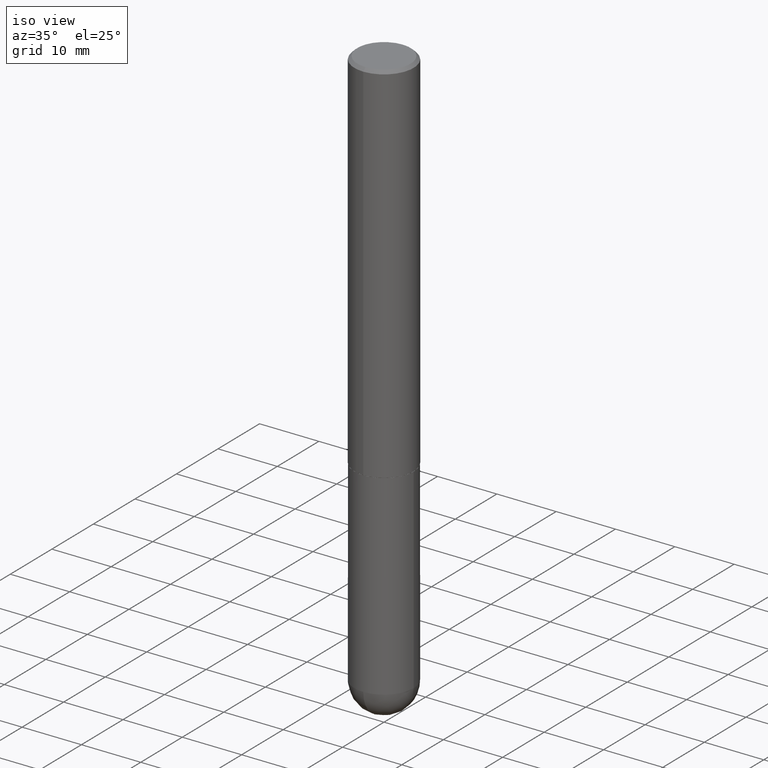
[diagram: clean part render]
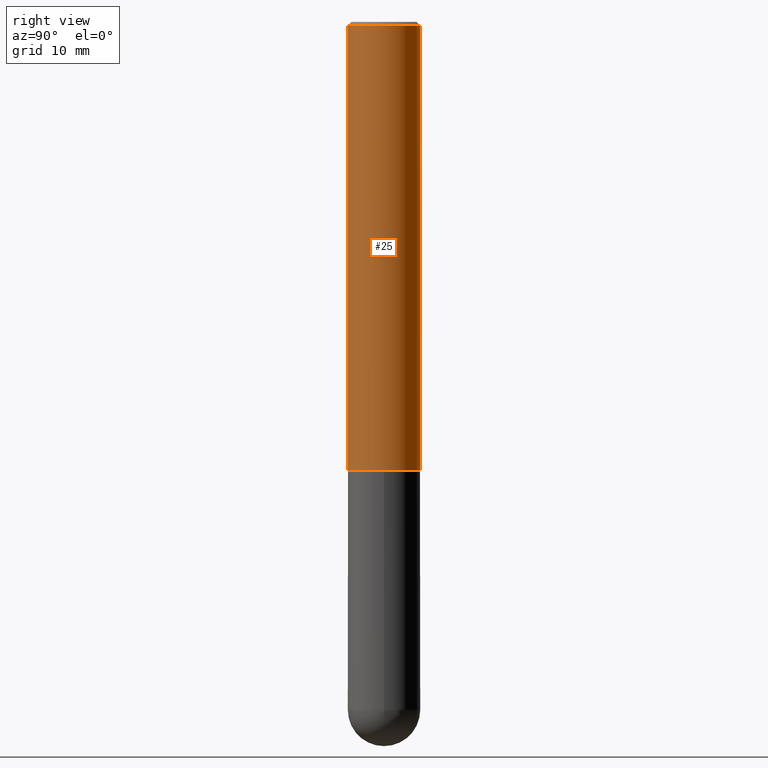
[diagram: tour spotlight — one face highlighted and labeled with its STEP entity id]
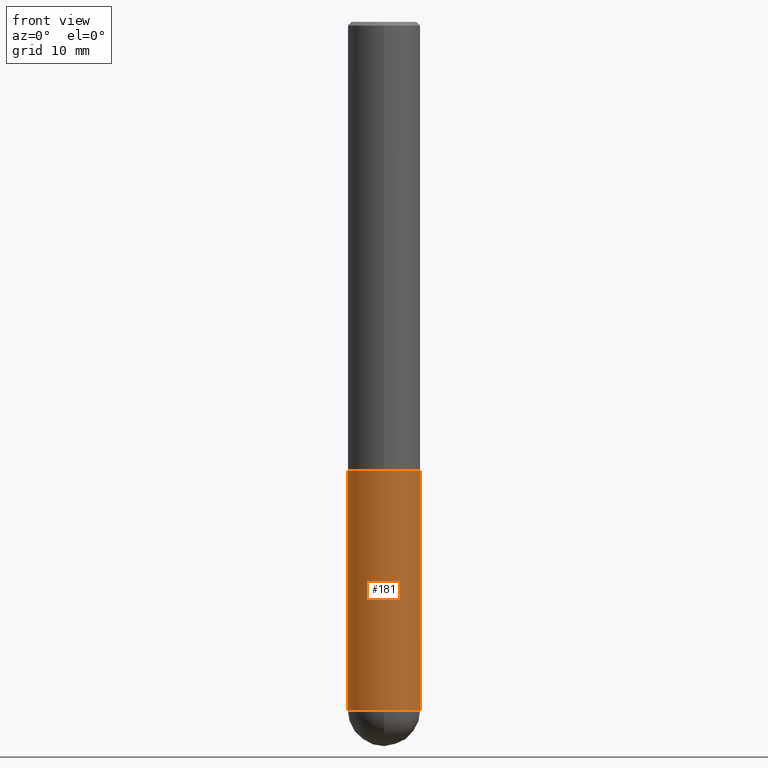
[diagram: tour spotlight — one face highlighted and labeled with its STEP entity id]
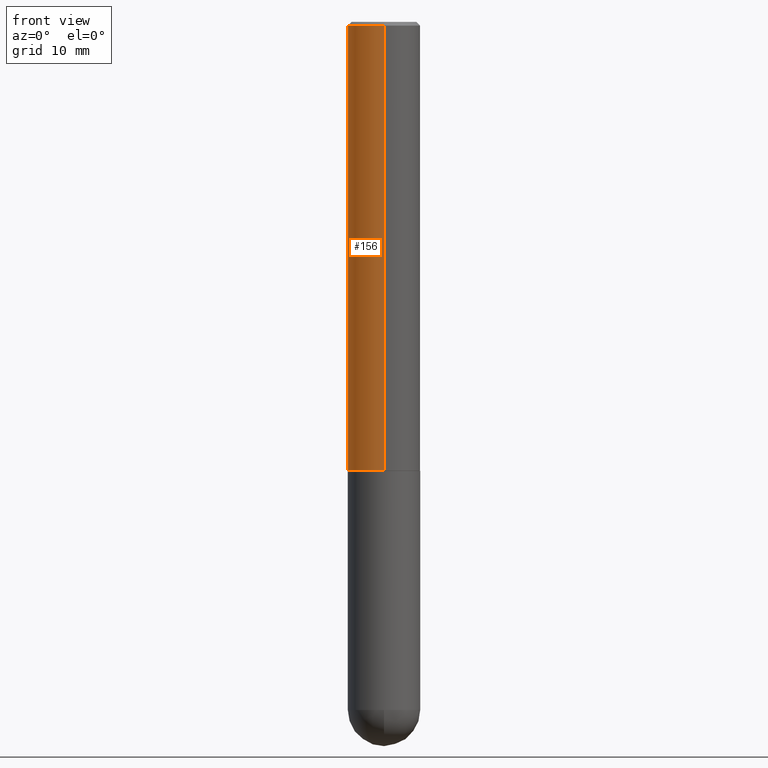
[diagram: tour spotlight — one face highlighted and labeled with its STEP entity id]
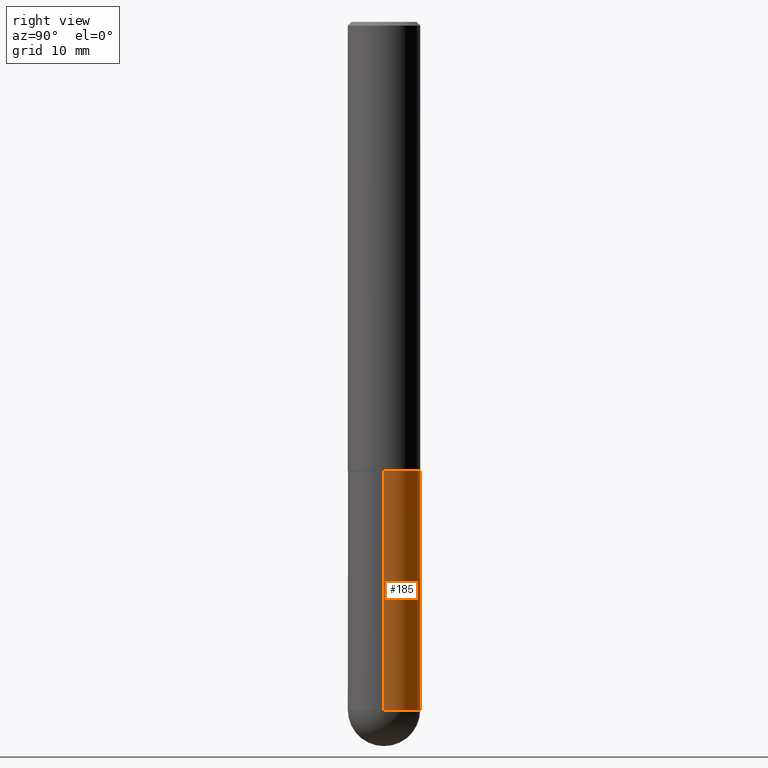
[diagram: tour spotlight — one face highlighted and labeled with its STEP entity id]
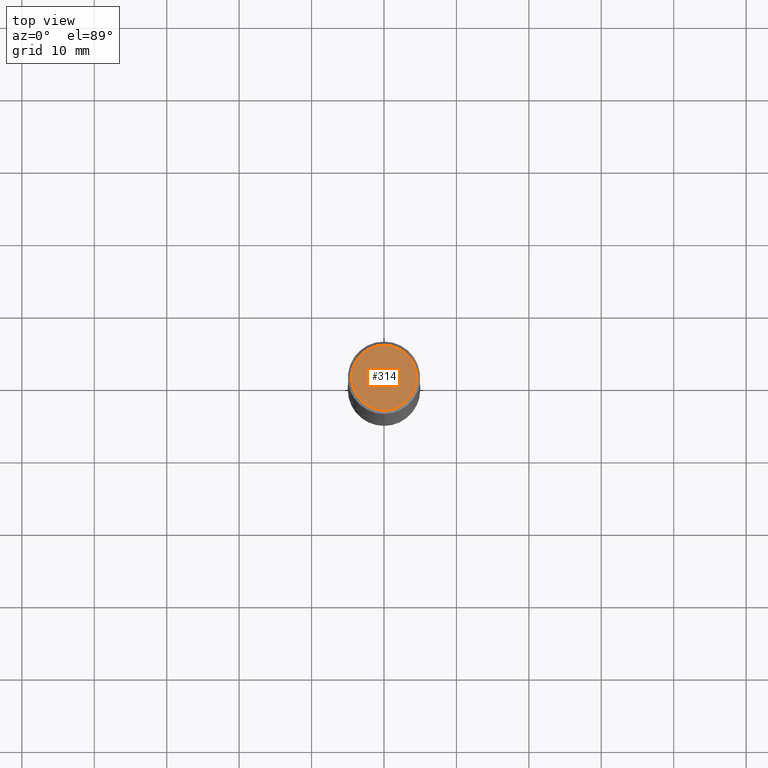
[diagram: tour spotlight — one face highlighted and labeled with its STEP entity id]
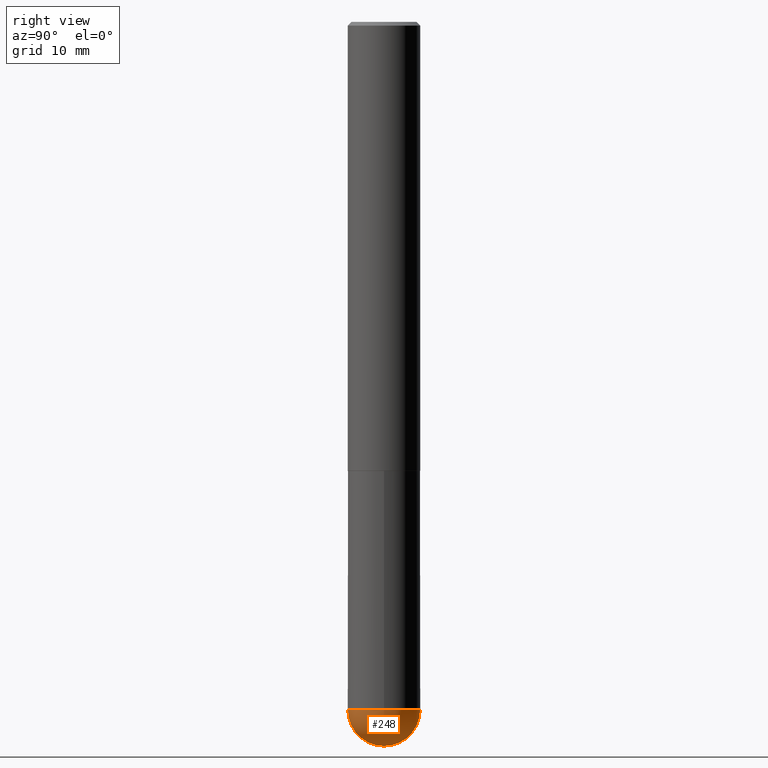
[diagram: tour spotlight — one face highlighted and labeled with its STEP entity id]
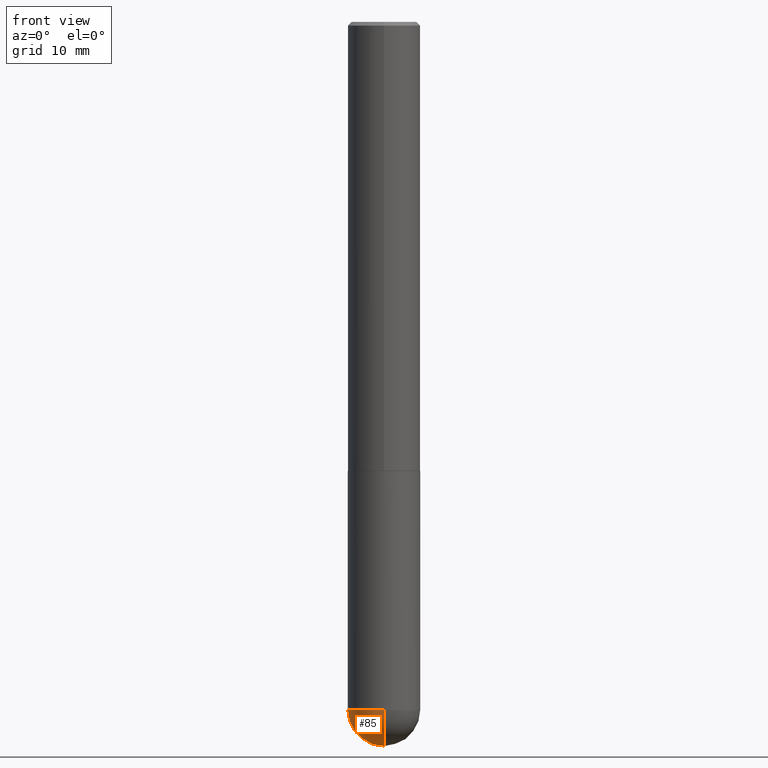
[diagram: tour spotlight — one face highlighted and labeled with its STEP entity id]
A machine part: a face-by-face anatomy tour. The part has 13 B-rep faces; the first image is the clean iso view, then the 7 largest visible faces are spotlighted one at a time (largest first), each with its STEP entity span.

Face 1 — right view, entity #25. In plain terms, the highlighted cylindrical surface (edge-blend (fillet) strip) has radius 5 mm, axis along (-0, 0, 1).
Definition (entity closure, byte-faithful):
#4 = DIRECTION ( 'NONE',  ( -2.444480225679141495E-29, 3.492897042394238758E-15, 1.000000000000000000 ) ) ;
#9 = DIRECTION ( 'NONE',  ( -2.444480225679141495E-29, 3.492897042394238758E-15, 1.000000000000000000 ) ) ;
#19 = CARTESIAN_POINT ( 'NONE',  ( 1.398703375343789145E-15, 0.1968499999999918093, -2.439900000000000624 ) ) ;
#20 = CIRCLE ( 'NONE', #195, 0.1968500000000003303 ) ;
#25 = ADVANCED_FACE ( 'NONE', ( #228 ), #363, .T. ) ;
#60 = VERTEX_POINT ( 'NONE', #19 ) ;
#61 = VERTEX_POINT ( 'NONE', #325 ) ;
#81 = DIRECTION ( 'NONE',  ( -2.444480225679141495E-29, 3.492897042394238758E-15, 1.000000000000000000 ) ) ;
#89 = ORIENTED_EDGE ( 'NONE', *, *, #221, .T. ) ;
#90 = CARTESIAN_POINT ( 'NONE',  ( -1.374596203102542594E-15, -0.1968500000000001915, 6.875767827953065398E-16 ) ) ;
#91 = EDGE_LOOP ( 'NONE', ( #178, #89, #95, #141 ) ) ;
#95 = ORIENTED_EDGE ( 'NONE', *, *, #285, .F. ) ;
#108 = VERTEX_POINT ( 'NONE', #200 ) ;
#119 = LINE ( 'NONE', #90, #384 ) ;
#141 = ORIENTED_EDGE ( 'NONE', *, *, #172, .F. ) ;
#155 = DIRECTION ( 'NONE',  ( -2.444480225679141495E-29, 3.492897042394238758E-15, 1.000000000000000000 ) ) ;
#162 = CARTESIAN_POINT ( 'NONE',  ( 5.964287302634537555E-29, -8.522319493737701952E-15, -2.439899999999999736 ) ) ;
#172 = EDGE_CURVE ( 'NONE', #61, #182, #119, .T. ) ;
#178 = ORIENTED_EDGE ( 'NONE', *, *, #270, .T. ) ;
#182 = VERTEX_POINT ( 'NONE', #371 ) ;
#183 = DIRECTION ( 'NONE',  ( -6.982962677686265133E-15, -1.000000000000000000, 3.491137977679279029E-15 ) ) ;
#195 = AXIS2_PLACEMENT_3D ( 'NONE', #162, #4, #392 ) ;
#200 = CARTESIAN_POINT ( 'NONE',  ( 1.374596203102542200E-15, 0.1968499999999999694, -0.02000000000000072900 ) ) ;
#206 = CARTESIAN_POINT ( 'NONE',  ( 1.398703375343758182E-15, 0.1968500000000001915, -6.875767827953065398E-16 ) ) ;
#221 = EDGE_CURVE ( 'NONE', #60, #108, #271, .T. ) ;
#228 = FACE_OUTER_BOUND ( 'NONE', #91, .T. ) ;
#233 = AXIS2_PLACEMENT_3D ( 'NONE', #295, #9, #292 ) ;
#249 = CIRCLE ( 'NONE', #393, 0.1968500000000000527 ) ;
#270 = EDGE_CURVE ( 'NONE', #61, #60, #20, .T. ) ;
#271 = LINE ( 'NONE', #206, #379 ) ;
#285 = EDGE_CURVE ( 'NONE', #182, #108, #249, .T. ) ;
#292 = DIRECTION ( 'NONE',  ( -6.982962677686265133E-15, -1.000000000000000000, 3.492897042394238758E-15 ) ) ;
#295 = CARTESIAN_POINT ( 'NONE',  ( 0.000000000000000000, 0.000000000000000000, 0.000000000000000000 ) ) ;
#309 = DIRECTION ( 'NONE',  ( -2.444480225679141495E-29, 3.492897042394238758E-15, 1.000000000000000000 ) ) ;
#322 = CARTESIAN_POINT ( 'NONE',  ( 4.888960451358293429E-31, -6.985794084788491174E-17, -0.02000000000000004205 ) ) ;
#325 = CARTESIAN_POINT ( 'NONE',  ( -1.374596203102484021E-15, -0.1968500000000088512, -2.439899999999998847 ) ) ;
#363 = CYLINDRICAL_SURFACE ( 'NONE', #233, 0.1968500000000001915 ) ;
#371 = CARTESIAN_POINT ( 'NONE',  ( -1.350489030861325626E-15, -0.1968500000000001082, -0.01999999999999935510 ) ) ;
#379 = VECTOR ( 'NONE', #81, 39.37007874015748143 ) ;
#384 = VECTOR ( 'NONE', #309, 39.37007874015748143 ) ;
#392 = DIRECTION ( 'NONE',  ( -6.982962677686265133E-15, -1.000000000000000000, 4.163344669033668535E-15 ) ) ;
#393 = AXIS2_PLACEMENT_3D ( 'NONE', #322, #155, #183 ) ;

Face 2 — front view, entity #181. In plain terms, the highlighted cylindrical surface (edge-blend (fillet) strip) has radius 5 mm, axis along (-0, 0, 1).
Definition (entity closure, byte-faithful):
#5 = AXIS2_PLACEMENT_3D ( 'NONE', #78, #106, #140 ) ;
#15 = EDGE_CURVE ( 'NONE', #23, #303, #208, .T. ) ;
#23 = VERTEX_POINT ( 'NONE', #135 ) ;
#24 = CARTESIAN_POINT ( 'NONE',  ( 9.146420155453340551E-29, -1.305866392947419340E-14, -3.740150000000000752 ) ) ;
#27 = EDGE_LOOP ( 'NONE', ( #398, #376, #260, #276, #296 ) ) ;
#28 = CIRCLE ( 'NONE', #79, 0.1968500000000000250 ) ;
#30 = CARTESIAN_POINT ( 'NONE',  ( 0.000000000000000000, 0.000000000000000000, 0.000000000000000000 ) ) ;
#38 = AXIS2_PLACEMENT_3D ( 'NONE', #24, #235, #176 ) ;
#51 = CARTESIAN_POINT ( 'NONE',  ( 0.1968499999999999694, -1.216510656783075637E-14, -3.740150000000000752 ) ) ;
#66 = CIRCLE ( 'NONE', #38, 0.1968499999999999694 ) ;
#78 = CARTESIAN_POINT ( 'NONE',  ( 9.146420155453340551E-29, -1.305866392947419340E-14, -3.740150000000000752 ) ) ;
#79 = AXIS2_PLACEMENT_3D ( 'NONE', #338, #179, #304 ) ;
#92 = CARTESIAN_POINT ( 'NONE',  ( 0.1968499999999999694, -1.374596203102541411E-15, 9.598753983154298056E-30 ) ) ;
#106 = DIRECTION ( 'NONE',  ( -2.445468806185136597E-29, 3.491481338843145583E-15, 1.000000000000000000 ) ) ;
#114 = CARTESIAN_POINT ( 'NONE',  ( 0.1968500000000000250, -9.896953003084774574E-15, -2.440900000000000070 ) ) ;
#125 = EDGE_CURVE ( 'NONE', #23, #244, #397, .T. ) ;
#135 = CARTESIAN_POINT ( 'NONE',  ( -0.1968499999999999694, -9.391806989384456184E-15, -3.740150000000000752 ) ) ;
#140 = DIRECTION ( 'NONE',  ( 1.000000000000000000, -6.982962677686269866E-15, 0.000000000000000000 ) ) ;
#170 = DIRECTION ( 'NONE',  ( -2.445468806185136877E-29, 3.491481338843145188E-15, 1.000000000000000000 ) ) ;
#176 = DIRECTION ( 'NONE',  ( 1.000000000000000000, -6.982962677686269866E-15, 0.000000000000000000 ) ) ;
#179 = DIRECTION ( 'NONE',  ( -2.445468806185136597E-29, 3.491481338843145583E-15, 1.000000000000000000 ) ) ;
#181 = ADVANCED_FACE ( 'NONE', ( #301 ), #404, .T. ) ;
#207 = VERTEX_POINT ( 'NONE', #114 ) ;
#208 = CIRCLE ( 'NONE', #5, 0.1968499999999999694 ) ;
#212 = EDGE_CURVE ( 'NONE', #244, #207, #28, .T. ) ;
#214 = DIRECTION ( 'NONE',  ( -2.445468806185136877E-29, 3.491481338843145188E-15, 1.000000000000000000 ) ) ;
#215 = AXIS2_PLACEMENT_3D ( 'NONE', #30, #277, #236 ) ;
#216 = EDGE_CURVE ( 'NONE', #303, #264, #66, .T. ) ;
#235 = DIRECTION ( 'NONE',  ( -2.445468806185136597E-29, 3.491481338843145583E-15, 1.000000000000000000 ) ) ;
#236 = DIRECTION ( 'NONE',  ( 1.000000000000000000, -6.982962677686266711E-15, 4.876176775795935793E-29 ) ) ;
#242 = VECTOR ( 'NONE', #214, 39.37007874015748143 ) ;
#244 = VERTEX_POINT ( 'NONE', #334 ) ;
#260 = ORIENTED_EDGE ( 'NONE', *, *, #216, .T. ) ;
#264 = VERTEX_POINT ( 'NONE', #51 ) ;
#276 = ORIENTED_EDGE ( 'NONE', *, *, #364, .T. ) ;
#277 = DIRECTION ( 'NONE',  ( -2.445468806185136597E-29, 3.491481338843145583E-15, 1.000000000000000000 ) ) ;
#296 = ORIENTED_EDGE ( 'NONE', *, *, #212, .F. ) ;
#301 = FACE_OUTER_BOUND ( 'NONE', #27, .T. ) ;
#303 = VERTEX_POINT ( 'NONE', #387 ) ;
#304 = DIRECTION ( 'NONE',  ( 1.000000000000000000, -6.982962677686262766E-15, 0.000000000000000000 ) ) ;
#307 = VECTOR ( 'NONE', #170, 39.37007874015748143 ) ;
#329 = CARTESIAN_POINT ( 'NONE',  ( -0.1968499999999999694, 1.398703375343756999E-15, -9.682923725166782276E-30 ) ) ;
#334 = CARTESIAN_POINT ( 'NONE',  ( -0.1968500000000000250, -9.391806989384456184E-15, -2.440900000000000070 ) ) ;
#338 = CARTESIAN_POINT ( 'NONE',  ( 5.969144809017299038E-29, -8.522356799982232966E-15, -2.440900000000000070 ) ) ;
#362 = LINE ( 'NONE', #92, #242 ) ;
#364 = EDGE_CURVE ( 'NONE', #264, #207, #362, .T. ) ;
#376 = ORIENTED_EDGE ( 'NONE', *, *, #15, .T. ) ;
#387 = CARTESIAN_POINT ( 'NONE',  ( -1.398703375343667858E-15, -0.1968500000000133754, -3.740150000000000308 ) ) ;
#397 = LINE ( 'NONE', #329, #307 ) ;
#398 = ORIENTED_EDGE ( 'NONE', *, *, #125, .F. ) ;
#404 = CYLINDRICAL_SURFACE ( 'NONE', #215, 0.1968499999999999694 ) ;

Face 3 — front view, entity #156. In plain terms, the highlighted cylindrical surface (edge-blend (fillet) strip) has radius 5 mm, axis along (-0, 0, 1).
Definition (entity closure, byte-faithful):
#11 = EDGE_CURVE ( 'NONE', #60, #61, #139, .T. ) ;
#13 = CARTESIAN_POINT ( 'NONE',  ( 0.000000000000000000, 0.000000000000000000, 0.000000000000000000 ) ) ;
#19 = CARTESIAN_POINT ( 'NONE',  ( 1.398703375343789145E-15, 0.1968499999999918093, -2.439900000000000624 ) ) ;
#22 = DIRECTION ( 'NONE',  ( -6.982962677686265133E-15, -1.000000000000000000, 3.491137977679279029E-15 ) ) ;
#40 = DIRECTION ( 'NONE',  ( -2.444480225679141495E-29, 3.492897042394238758E-15, 1.000000000000000000 ) ) ;
#42 = CYLINDRICAL_SURFACE ( 'NONE', #147, 0.1968500000000001915 ) ;
#50 = CARTESIAN_POINT ( 'NONE',  ( 4.888960451358293429E-31, -6.985794084788491174E-17, -0.02000000000000004205 ) ) ;
#55 = AXIS2_PLACEMENT_3D ( 'NONE', #50, #109, #22 ) ;
#60 = VERTEX_POINT ( 'NONE', #19 ) ;
#61 = VERTEX_POINT ( 'NONE', #325 ) ;
#81 = DIRECTION ( 'NONE',  ( -2.444480225679141495E-29, 3.492897042394238758E-15, 1.000000000000000000 ) ) ;
#90 = CARTESIAN_POINT ( 'NONE',  ( -1.374596203102542594E-15, -0.1968500000000001915, 6.875767827953065398E-16 ) ) ;
#108 = VERTEX_POINT ( 'NONE', #200 ) ;
#109 = DIRECTION ( 'NONE',  ( -2.444480225679141495E-29, 3.492897042394238758E-15, 1.000000000000000000 ) ) ;
#119 = LINE ( 'NONE', #90, #384 ) ;
#138 = DIRECTION ( 'NONE',  ( -6.982962677686265133E-15, -1.000000000000000000, 3.492897042394238758E-15 ) ) ;
#139 = CIRCLE ( 'NONE', #343, 0.1968500000000003303 ) ;
#147 = AXIS2_PLACEMENT_3D ( 'NONE', #13, #163, #138 ) ;
#156 = ADVANCED_FACE ( 'NONE', ( #223 ), #42, .T. ) ;
#163 = DIRECTION ( 'NONE',  ( -2.444480225679141495E-29, 3.492897042394238758E-15, 1.000000000000000000 ) ) ;
#165 = EDGE_CURVE ( 'NONE', #108, #182, #252, .T. ) ;
#172 = EDGE_CURVE ( 'NONE', #61, #182, #119, .T. ) ;
#173 = CARTESIAN_POINT ( 'NONE',  ( 5.964287302634537555E-29, -8.522319493737701952E-15, -2.439899999999999736 ) ) ;
#180 = ORIENTED_EDGE ( 'NONE', *, *, #172, .T. ) ;
#182 = VERTEX_POINT ( 'NONE', #371 ) ;
#188 = EDGE_LOOP ( 'NONE', ( #411, #366, #180, #218 ) ) ;
#200 = CARTESIAN_POINT ( 'NONE',  ( 1.374596203102542200E-15, 0.1968499999999999694, -0.02000000000000072900 ) ) ;
#206 = CARTESIAN_POINT ( 'NONE',  ( 1.398703375343758182E-15, 0.1968500000000001915, -6.875767827953065398E-16 ) ) ;
#218 = ORIENTED_EDGE ( 'NONE', *, *, #165, .F. ) ;
#221 = EDGE_CURVE ( 'NONE', #60, #108, #271, .T. ) ;
#223 = FACE_OUTER_BOUND ( 'NONE', #188, .T. ) ;
#252 = CIRCLE ( 'NONE', #55, 0.1968500000000000527 ) ;
#271 = LINE ( 'NONE', #206, #379 ) ;
#309 = DIRECTION ( 'NONE',  ( -2.444480225679141495E-29, 3.492897042394238758E-15, 1.000000000000000000 ) ) ;
#325 = CARTESIAN_POINT ( 'NONE',  ( -1.374596203102484021E-15, -0.1968500000000088512, -2.439899999999998847 ) ) ;
#343 = AXIS2_PLACEMENT_3D ( 'NONE', #173, #40, #365 ) ;
#365 = DIRECTION ( 'NONE',  ( -6.982962677686265133E-15, -1.000000000000000000, 4.163344669033668535E-15 ) ) ;
#366 = ORIENTED_EDGE ( 'NONE', *, *, #11, .T. ) ;
#371 = CARTESIAN_POINT ( 'NONE',  ( -1.350489030861325626E-15, -0.1968500000000001082, -0.01999999999999935510 ) ) ;
#379 = VECTOR ( 'NONE', #81, 39.37007874015748143 ) ;
#384 = VECTOR ( 'NONE', #309, 39.37007874015748143 ) ;
#411 = ORIENTED_EDGE ( 'NONE', *, *, #221, .F. ) ;

Face 4 — right view, entity #185. In plain terms, the highlighted cylindrical surface (edge-blend (fillet) strip) has radius 5 mm, axis along (-0, 0, 1).
Definition (entity closure, byte-faithful):
#23 = VERTEX_POINT ( 'NONE', #135 ) ;
#29 = AXIS2_PLACEMENT_3D ( 'NONE', #306, #143, #82 ) ;
#33 = ORIENTED_EDGE ( 'NONE', *, *, #400, .T. ) ;
#35 = DIRECTION ( 'NONE',  ( -2.445468806185136597E-29, 3.491481338843145583E-15, 1.000000000000000000 ) ) ;
#48 = AXIS2_PLACEMENT_3D ( 'NONE', #257, #389, #103 ) ;
#51 = CARTESIAN_POINT ( 'NONE',  ( 0.1968499999999999694, -1.216510656783075637E-14, -3.740150000000000752 ) ) ;
#54 = CYLINDRICAL_SURFACE ( 'NONE', #29, 0.1968499999999999694 ) ;
#58 = ORIENTED_EDGE ( 'NONE', *, *, #125, .T. ) ;
#63 = DIRECTION ( 'NONE',  ( 1.000000000000000000, -6.982962677686262766E-15, 0.000000000000000000 ) ) ;
#74 = CIRCLE ( 'NONE', #184, 0.1968499999999999694 ) ;
#82 = DIRECTION ( 'NONE',  ( 1.000000000000000000, -6.982962677686266711E-15, 4.876176775795935793E-29 ) ) ;
#92 = CARTESIAN_POINT ( 'NONE',  ( 0.1968499999999999694, -1.374596203102541411E-15, 9.598753983154298056E-30 ) ) ;
#98 = DIRECTION ( 'NONE',  ( 1.000000000000000000, -6.982962677686269866E-15, 0.000000000000000000 ) ) ;
#103 = DIRECTION ( 'NONE',  ( 1.000000000000000000, -6.982962677686269866E-15, 0.000000000000000000 ) ) ;
#111 = CIRCLE ( 'NONE', #152, 0.1968500000000000250 ) ;
#114 = CARTESIAN_POINT ( 'NONE',  ( 0.1968500000000000250, -9.896953003084774574E-15, -2.440900000000000070 ) ) ;
#125 = EDGE_CURVE ( 'NONE', #23, #244, #397, .T. ) ;
#135 = CARTESIAN_POINT ( 'NONE',  ( -0.1968499999999999694, -9.391806989384456184E-15, -3.740150000000000752 ) ) ;
#137 = CARTESIAN_POINT ( 'NONE',  ( 9.146420155453340551E-29, -1.305866392947419340E-14, -3.740150000000000752 ) ) ;
#143 = DIRECTION ( 'NONE',  ( -2.445468806185136597E-29, 3.491481338843145583E-15, 1.000000000000000000 ) ) ;
#152 = AXIS2_PLACEMENT_3D ( 'NONE', #192, #35, #63 ) ;
#170 = DIRECTION ( 'NONE',  ( -2.445468806185136877E-29, 3.491481338843145188E-15, 1.000000000000000000 ) ) ;
#184 = AXIS2_PLACEMENT_3D ( 'NONE', #137, #326, #98 ) ;
#185 = ADVANCED_FACE ( 'NONE', ( #406 ), #54, .T. ) ;
#192 = CARTESIAN_POINT ( 'NONE',  ( 5.969144809017299038E-29, -8.522356799982232966E-15, -2.440900000000000070 ) ) ;
#207 = VERTEX_POINT ( 'NONE', #114 ) ;
#214 = DIRECTION ( 'NONE',  ( -2.445468806185136877E-29, 3.491481338843145188E-15, 1.000000000000000000 ) ) ;
#242 = VECTOR ( 'NONE', #214, 39.37007874015748143 ) ;
#244 = VERTEX_POINT ( 'NONE', #334 ) ;
#247 = ORIENTED_EDGE ( 'NONE', *, *, #345, .T. ) ;
#257 = CARTESIAN_POINT ( 'NONE',  ( 9.146420155453340551E-29, -1.305866392947419340E-14, -3.740150000000000752 ) ) ;
#264 = VERTEX_POINT ( 'NONE', #51 ) ;
#280 = EDGE_CURVE ( 'NONE', #207, #244, #111, .T. ) ;
#294 = CARTESIAN_POINT ( 'NONE',  ( 1.374596203102631736E-15, 0.1968499999999867855, -3.740150000000001196 ) ) ;
#306 = CARTESIAN_POINT ( 'NONE',  ( 0.000000000000000000, 0.000000000000000000, 0.000000000000000000 ) ) ;
#307 = VECTOR ( 'NONE', #170, 39.37007874015748143 ) ;
#311 = ORIENTED_EDGE ( 'NONE', *, *, #280, .F. ) ;
#321 = EDGE_LOOP ( 'NONE', ( #33, #58, #311, #350, #247 ) ) ;
#326 = DIRECTION ( 'NONE',  ( -2.445468806185136597E-29, 3.491481338843145583E-15, 1.000000000000000000 ) ) ;
#329 = CARTESIAN_POINT ( 'NONE',  ( -0.1968499999999999694, 1.398703375343756999E-15, -9.682923725166782276E-30 ) ) ;
#334 = CARTESIAN_POINT ( 'NONE',  ( -0.1968500000000000250, -9.391806989384456184E-15, -2.440900000000000070 ) ) ;
#341 = VERTEX_POINT ( 'NONE', #294 ) ;
#345 = EDGE_CURVE ( 'NONE', #264, #341, #74, .T. ) ;
#349 = CIRCLE ( 'NONE', #48, 0.1968499999999999694 ) ;
#350 = ORIENTED_EDGE ( 'NONE', *, *, #364, .F. ) ;
#362 = LINE ( 'NONE', #92, #242 ) ;
#364 = EDGE_CURVE ( 'NONE', #264, #207, #362, .T. ) ;
#389 = DIRECTION ( 'NONE',  ( -2.445468806185136597E-29, 3.491481338843145583E-15, 1.000000000000000000 ) ) ;
#397 = LINE ( 'NONE', #329, #307 ) ;
#400 = EDGE_CURVE ( 'NONE', #341, #23, #349, .T. ) ;
#406 = FACE_OUTER_BOUND ( 'NONE', #321, .T. ) ;

Face 5 — top view, entity #314. In plain terms, the highlighted planar face has unit normal (0, -0, -1).
Definition (entity closure, byte-faithful):
#12 = CARTESIAN_POINT ( 'NONE',  ( -8.144869788625453645E-45, 1.163813529621500407E-30, 3.331943414008428800E-16 ) ) ;
#37 = FACE_OUTER_BOUND ( 'NONE', #405, .T. ) ;
#44 = DIRECTION ( 'NONE',  ( -6.982962677686265922E-15, -1.000000000000000000, 3.492897042394238758E-15 ) ) ;
#83 = ORIENTED_EDGE ( 'NONE', *, *, #346, .T. ) ;
#86 = AXIS2_PLACEMENT_3D ( 'NONE', #151, #353, #279 ) ;
#118 = VERTEX_POINT ( 'NONE', #323 ) ;
#120 = EDGE_CURVE ( 'NONE', #118, #289, #158, .T. ) ;
#151 = CARTESIAN_POINT ( 'NONE',  ( 1.234936949548813829E-15, 0.1768499999999996741, -4.511216712469985980E-16 ) ) ;
#158 = CIRCLE ( 'NONE', #253, 0.1768499999999996741 ) ;
#175 = AXIS2_PLACEMENT_3D ( 'NONE', #12, #291, #287 ) ;
#224 = CARTESIAN_POINT ( 'NONE',  ( 1.304766576325678113E-15, 0.1768499999999996741, -2.845245005465771333E-16 ) ) ;
#225 = CARTESIAN_POINT ( 'NONE',  ( -8.144869788625453645E-45, 1.163813529621500407E-30, 3.331943414008428800E-16 ) ) ;
#253 = AXIS2_PLACEMENT_3D ( 'NONE', #225, #263, #44 ) ;
#263 = DIRECTION ( 'NONE',  ( -2.444480225679141495E-29, 3.492897042394238758E-15, 1.000000000000000000 ) ) ;
#278 = ORIENTED_EDGE ( 'NONE', *, *, #120, .T. ) ;
#279 = DIRECTION ( 'NONE',  ( 6.982962677686265922E-15, 1.000000000000000000, -3.492897042394238758E-15 ) ) ;
#287 = DIRECTION ( 'NONE',  ( -6.982962677686265922E-15, -1.000000000000000000, 3.492897042394238758E-15 ) ) ;
#289 = VERTEX_POINT ( 'NONE', #224 ) ;
#291 = DIRECTION ( 'NONE',  ( -2.444480225679141495E-29, 3.492897042394238758E-15, 1.000000000000000000 ) ) ;
#314 = ADVANCED_FACE ( 'NONE', ( #37 ), #320, .F. ) ;
#320 = PLANE ( 'NONE',  #86 ) ;
#323 = CARTESIAN_POINT ( 'NONE',  ( -1.281884050883609506E-15, -0.1768499999999996741, 9.509131833482628441E-16 ) ) ;
#346 = EDGE_CURVE ( 'NONE', #289, #118, #360, .T. ) ;
#353 = DIRECTION ( 'NONE',  ( 2.444480225679141214E-29, -3.492897042394238758E-15, -1.000000000000000000 ) ) ;
#360 = CIRCLE ( 'NONE', #175, 0.1768499999999996741 ) ;
#405 = EDGE_LOOP ( 'NONE', ( #83, #278 ) ) ;

Face 6 — right view, entity #248. In plain terms, the highlighted spherical surface has radius 5 mm.
Definition (entity closure, byte-faithful):
#24 = CARTESIAN_POINT ( 'NONE',  ( 9.146420155453340551E-29, -1.305866392947419340E-14, -3.740150000000000752 ) ) ;
#32 = CIRCLE ( 'NONE', #367, 0.1968500000000001360 ) ;
#38 = AXIS2_PLACEMENT_3D ( 'NONE', #24, #235, #176 ) ;
#51 = CARTESIAN_POINT ( 'NONE',  ( 0.1968499999999999694, -1.216510656783075637E-14, -3.740150000000000752 ) ) ;
#59 = EDGE_CURVE ( 'NONE', #153, #341, #32, .T. ) ;
#66 = CIRCLE ( 'NONE', #38, 0.1968499999999999694 ) ;
#74 = CIRCLE ( 'NONE', #184, 0.1968499999999999694 ) ;
#88 = DIRECTION ( 'NONE',  ( -1.000000000000000000, 6.982962677686265922E-15, -4.883557194083113462E-29 ) ) ;
#94 = EDGE_CURVE ( 'NONE', #153, #303, #97, .T. ) ;
#97 = CIRCLE ( 'NONE', #330, 0.1968500000000001360 ) ;
#98 = DIRECTION ( 'NONE',  ( 1.000000000000000000, -6.982962677686269866E-15, 0.000000000000000000 ) ) ;
#137 = CARTESIAN_POINT ( 'NONE',  ( 9.146420155453340551E-29, -1.305866392947419340E-14, -3.740150000000000752 ) ) ;
#142 = DIRECTION ( 'NONE',  ( 1.000000000000000000, -6.982962677686265922E-15, 4.883557194083112340E-29 ) ) ;
#153 = VERTEX_POINT ( 'NONE', #197 ) ;
#176 = DIRECTION ( 'NONE',  ( 1.000000000000000000, -6.982962677686269866E-15, 0.000000000000000000 ) ) ;
#184 = AXIS2_PLACEMENT_3D ( 'NONE', #137, #326, #98 ) ;
#193 = DIRECTION ( 'NONE',  ( -7.105427357601001070E-15, -1.000000000000000000, 0.000000000000000000 ) ) ;
#197 = CARTESIAN_POINT ( 'NONE',  ( 9.305107886238245984E-29, -1.420809081304490838E-14, -3.937000000000000721 ) ) ;
#204 = DIRECTION ( 'NONE',  ( -1.000000000000000000, 7.105427357601001070E-15, -4.926315508542082329E-29 ) ) ;
#210 = FACE_OUTER_BOUND ( 'NONE', #403, .T. ) ;
#213 = ORIENTED_EDGE ( 'NONE', *, *, #59, .T. ) ;
#216 = EDGE_CURVE ( 'NONE', #303, #264, #66, .T. ) ;
#235 = DIRECTION ( 'NONE',  ( -2.445468806185136597E-29, 3.491481338843145583E-15, 1.000000000000000000 ) ) ;
#239 = CARTESIAN_POINT ( 'NONE',  ( 8.815300377539453183E-29, -1.353284629761424370E-14, -3.740150000000000308 ) ) ;
#243 = ORIENTED_EDGE ( 'NONE', *, *, #216, .F. ) ;
#248 = ADVANCED_FACE ( 'NONE', ( #210 ), #335, .T. ) ;
#264 = VERTEX_POINT ( 'NONE', #51 ) ;
#265 = CARTESIAN_POINT ( 'NONE',  ( 8.815300377539453183E-29, -1.353284629761424370E-14, -3.740150000000000308 ) ) ;
#266 = AXIS2_PLACEMENT_3D ( 'NONE', #239, #88, #340 ) ;
#283 = ORIENTED_EDGE ( 'NONE', *, *, #94, .F. ) ;
#294 = CARTESIAN_POINT ( 'NONE',  ( 1.374596203102631736E-15, 0.1968499999999867855, -3.740150000000001196 ) ) ;
#303 = VERTEX_POINT ( 'NONE', #387 ) ;
#310 = ORIENTED_EDGE ( 'NONE', *, *, #345, .F. ) ;
#326 = DIRECTION ( 'NONE',  ( -2.445468806185136597E-29, 3.491481338843145583E-15, 1.000000000000000000 ) ) ;
#330 = AXIS2_PLACEMENT_3D ( 'NONE', #361, #204, #193 ) ;
#335 = SPHERICAL_SURFACE ( 'NONE', #266, 0.1968500000000001360 ) ;
#340 = DIRECTION ( 'NONE',  ( 6.982962677686265922E-15, 1.000000000000000000, -2.775563112689114723E-15 ) ) ;
#341 = VERTEX_POINT ( 'NONE', #294 ) ;
#345 = EDGE_CURVE ( 'NONE', #264, #341, #74, .T. ) ;
#358 = DIRECTION ( 'NONE',  ( 6.982962677686265922E-15, 1.000000000000000000, 0.000000000000000000 ) ) ;
#361 = CARTESIAN_POINT ( 'NONE',  ( 8.815300377539453183E-29, -1.353284629761424370E-14, -3.740150000000000308 ) ) ;
#367 = AXIS2_PLACEMENT_3D ( 'NONE', #265, #142, #358 ) ;
#387 = CARTESIAN_POINT ( 'NONE',  ( -1.398703375343667858E-15, -0.1968500000000133754, -3.740150000000000308 ) ) ;
#403 = EDGE_LOOP ( 'NONE', ( #283, #213, #310, #243 ) ) ;

Face 7 — front view, entity #85. In plain terms, the highlighted spherical surface has radius 5 mm.
Definition (entity closure, byte-faithful):
#5 = AXIS2_PLACEMENT_3D ( 'NONE', #78, #106, #140 ) ;
#15 = EDGE_CURVE ( 'NONE', #23, #303, #208, .T. ) ;
#17 = ORIENTED_EDGE ( 'NONE', *, *, #94, .T. ) ;
#23 = VERTEX_POINT ( 'NONE', #135 ) ;
#32 = CIRCLE ( 'NONE', #367, 0.1968500000000001360 ) ;
#48 = AXIS2_PLACEMENT_3D ( 'NONE', #257, #389, #103 ) ;
#59 = EDGE_CURVE ( 'NONE', #153, #341, #32, .T. ) ;
#72 = DIRECTION ( 'NONE',  ( -1.000000000000000000, 6.982962677686265922E-15, -4.883557194083113462E-29 ) ) ;
#78 = CARTESIAN_POINT ( 'NONE',  ( 9.146420155453340551E-29, -1.305866392947419340E-14, -3.740150000000000752 ) ) ;
#85 = ADVANCED_FACE ( 'NONE', ( #199 ), #231, .T. ) ;
#94 = EDGE_CURVE ( 'NONE', #153, #303, #97, .T. ) ;
#97 = CIRCLE ( 'NONE', #330, 0.1968500000000001360 ) ;
#103 = DIRECTION ( 'NONE',  ( 1.000000000000000000, -6.982962677686269866E-15, 0.000000000000000000 ) ) ;
#106 = DIRECTION ( 'NONE',  ( -2.445468806185136597E-29, 3.491481338843145583E-15, 1.000000000000000000 ) ) ;
#135 = CARTESIAN_POINT ( 'NONE',  ( -0.1968499999999999694, -9.391806989384456184E-15, -3.740150000000000752 ) ) ;
#140 = DIRECTION ( 'NONE',  ( 1.000000000000000000, -6.982962677686269866E-15, 0.000000000000000000 ) ) ;
#142 = DIRECTION ( 'NONE',  ( 1.000000000000000000, -6.982962677686265922E-15, 4.883557194083112340E-29 ) ) ;
#153 = VERTEX_POINT ( 'NONE', #197 ) ;
#160 = EDGE_LOOP ( 'NONE', ( #385, #17, #191, #318 ) ) ;
#191 = ORIENTED_EDGE ( 'NONE', *, *, #15, .F. ) ;
#193 = DIRECTION ( 'NONE',  ( -7.105427357601001070E-15, -1.000000000000000000, 0.000000000000000000 ) ) ;
#197 = CARTESIAN_POINT ( 'NONE',  ( 9.305107886238245984E-29, -1.420809081304490838E-14, -3.937000000000000721 ) ) ;
#199 = FACE_OUTER_BOUND ( 'NONE', #160, .T. ) ;
#204 = DIRECTION ( 'NONE',  ( -1.000000000000000000, 7.105427357601001070E-15, -4.926315508542082329E-29 ) ) ;
#208 = CIRCLE ( 'NONE', #5, 0.1968499999999999694 ) ;
#231 = SPHERICAL_SURFACE ( 'NONE', #273, 0.1968500000000001360 ) ;
#257 = CARTESIAN_POINT ( 'NONE',  ( 9.146420155453340551E-29, -1.305866392947419340E-14, -3.740150000000000752 ) ) ;
#265 = CARTESIAN_POINT ( 'NONE',  ( 8.815300377539453183E-29, -1.353284629761424370E-14, -3.740150000000000308 ) ) ;
#273 = AXIS2_PLACEMENT_3D ( 'NONE', #327, #72, #332 ) ;
#294 = CARTESIAN_POINT ( 'NONE',  ( 1.374596203102631736E-15, 0.1968499999999867855, -3.740150000000001196 ) ) ;
#303 = VERTEX_POINT ( 'NONE', #387 ) ;
#318 = ORIENTED_EDGE ( 'NONE', *, *, #400, .F. ) ;
#327 = CARTESIAN_POINT ( 'NONE',  ( 8.815300377539453183E-29, -1.353284629761424370E-14, -3.740150000000000308 ) ) ;
#330 = AXIS2_PLACEMENT_3D ( 'NONE', #361, #204, #193 ) ;
#332 = DIRECTION ( 'NONE',  ( 6.982962677686265922E-15, 1.000000000000000000, -2.775563112689114723E-15 ) ) ;
#341 = VERTEX_POINT ( 'NONE', #294 ) ;
#349 = CIRCLE ( 'NONE', #48, 0.1968499999999999694 ) ;
#358 = DIRECTION ( 'NONE',  ( 6.982962677686265922E-15, 1.000000000000000000, 0.000000000000000000 ) ) ;
#361 = CARTESIAN_POINT ( 'NONE',  ( 8.815300377539453183E-29, -1.353284629761424370E-14, -3.740150000000000308 ) ) ;
#367 = AXIS2_PLACEMENT_3D ( 'NONE', #265, #142, #358 ) ;
#385 = ORIENTED_EDGE ( 'NONE', *, *, #59, .F. ) ;
#387 = CARTESIAN_POINT ( 'NONE',  ( -1.398703375343667858E-15, -0.1968500000000133754, -3.740150000000000308 ) ) ;
#389 = DIRECTION ( 'NONE',  ( -2.445468806185136597E-29, 3.491481338843145583E-15, 1.000000000000000000 ) ) ;
#400 = EDGE_CURVE ( 'NONE', #341, #23, #349, .T. ) ;